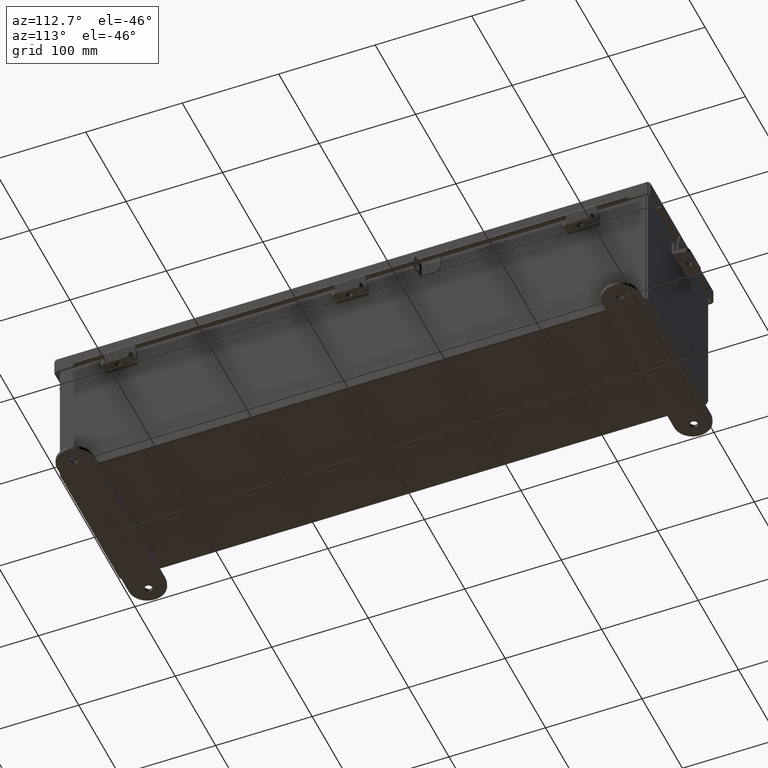
[diagram: clean part render]
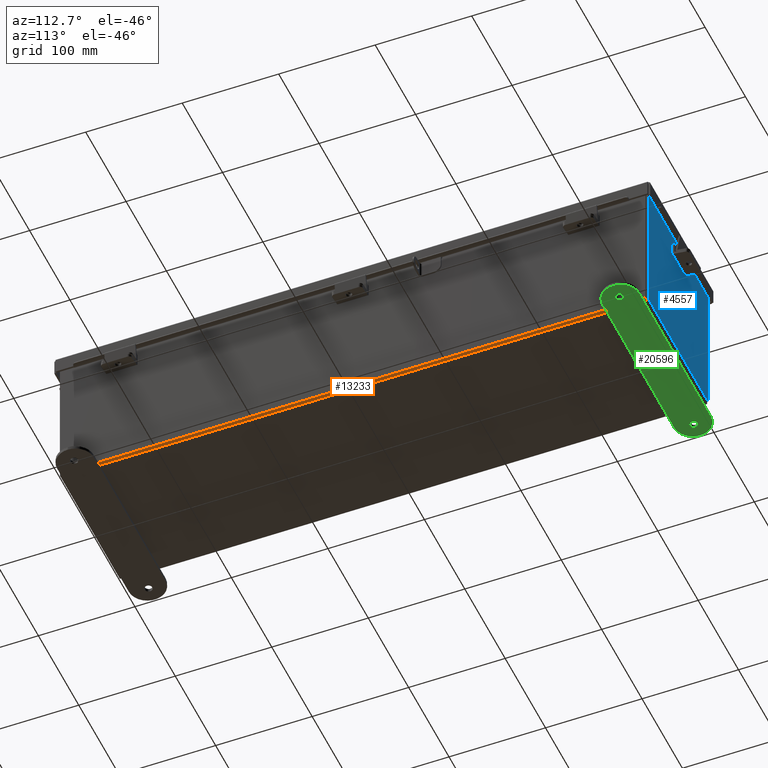
[diagram: same view with three faces highlighted in distinct colors, each labeled with its STEP entity id]
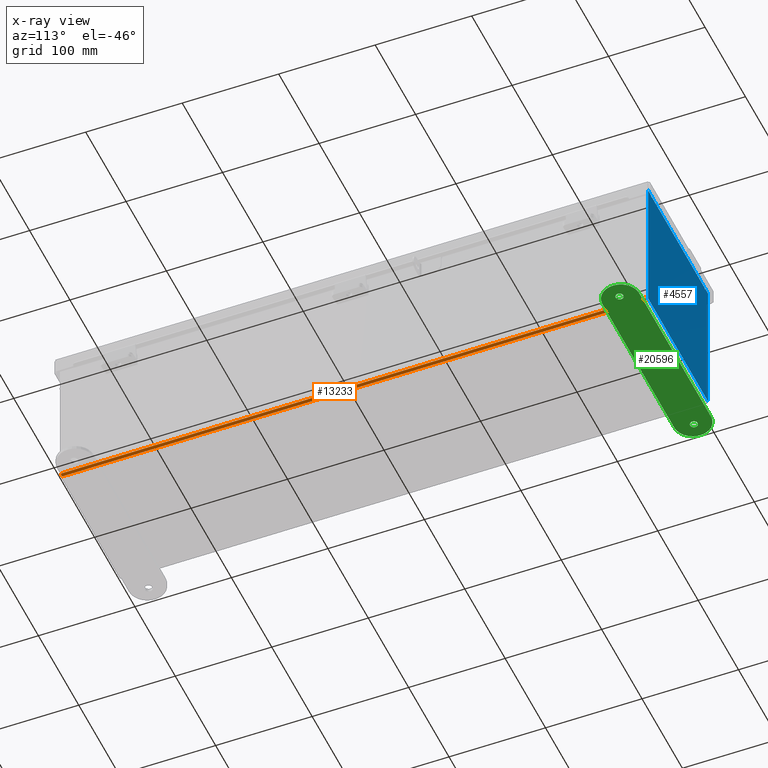
[diagram: x-ray of the same camera — body ghosted, the three highlighted faces saturated]
A machine part, auxiliary view with three faces highlighted in distinct colors.
The next image is the same camera in x-ray (body ghosted, the three faces saturated) — at least one of them is partly hidden behind the body in this view.
Their STEP definitions:

[orange] entity #13233 — the highlighted cylindrical surface (edge-blend (fillet) strip) has radius 2.2276 mm, axis along (0, 1, 0).
#26 = AXIS2_PLACEMENT_3D ( 'NONE', #11849, #1311, #22385 ) ;
#61 = VECTOR ( 'NONE', #8740, 39.37007874015748100 ) ;
#237 = DIRECTION ( 'NONE',  ( -0.0000000000000000000, -1.000000000000000000, -8.208677865577646300E-017 ) ) ;
#1311 = DIRECTION ( 'NONE',  ( 0.0000000000000000000, 1.000000000000000000, 8.208677865577646300E-017 ) ) ;
#2020 = CIRCLE ( 'NONE', #21043, 0.08770000000000009700 ) ;
#2205 = CIRCLE ( 'NONE', #3497, 0.08770000000000009700 ) ;
#2698 = DIRECTION ( 'NONE',  ( -1.583087998225295500E-031, -1.000000000000000000, -4.581600452255731000E-017 ) ) ;
#3497 = AXIS2_PLACEMENT_3D ( 'NONE', #8204, #20507, #9972 ) ;
#4540 = LINE ( 'NONE', #11485, #22159 ) ;
#4918 = VERTEX_POINT ( 'NONE', #10673 ) ;
#4931 = EDGE_CURVE ( 'NONE', #6884, #4918, #2020, .T. ) ;
#5833 = CARTESIAN_POINT ( 'NONE',  ( 2.912299999999999200, 11.92529999999999300, -0.07469999999999842000 ) ) ;
#6425 = EDGE_CURVE ( 'NONE', #18147, #6884, #18747, .T. ) ;
#6469 = FACE_OUTER_BOUND ( 'NONE', #14493, .T. ) ;
#6578 = CARTESIAN_POINT ( 'NONE',  ( 2.912299999999999200, -11.92530000000000000, -0.07470000000000000300 ) ) ;
#6884 = VERTEX_POINT ( 'NONE', #6578 ) ;
#8204 = CARTESIAN_POINT ( 'NONE',  ( 2.912299999999999200, 11.92529999999999300, 0.01300000000000168700 ) ) ;
#8740 = DIRECTION ( 'NONE',  ( -0.0000000000000000000, -1.000000000000000000, -8.208677865577646300E-017 ) ) ;
#9972 = DIRECTION ( 'NONE',  ( 0.0000000000000000000, 0.0000000000000000000, 1.000000000000000000 ) ) ;
#10670 = ORIENTED_EDGE ( 'NONE', *, *, #4931, .F. ) ;
#10673 = CARTESIAN_POINT ( 'NONE',  ( 2.999999999999999600, -11.92530000000000000, 0.01299999999999941700 ) ) ;
#10753 = CARTESIAN_POINT ( 'NONE',  ( 2.912299999999999200, -11.92530000000000000, 0.01299999999999972400 ) ) ;
#11485 = CARTESIAN_POINT ( 'NONE',  ( 2.999999999999999600, -11.92530000000000000, 0.01299999999999984300 ) ) ;
#11849 = CARTESIAN_POINT ( 'NONE',  ( 2.912299999999999200, 11.92529999999999600, 0.01300000000000168700 ) ) ;
#12527 = DIRECTION ( 'NONE',  ( 0.0000000000000000000, 0.0000000000000000000, 1.000000000000000000 ) ) ;
#13068 = ORIENTED_EDGE ( 'NONE', *, *, #16544, .F. ) ;
#13085 = EDGE_CURVE ( 'NONE', #15536, #4918, #4540, .T. ) ;
#13233 = ADVANCED_FACE ( 'NONE', ( #6469 ), #19389, .T. ) ;
#14493 = EDGE_LOOP ( 'NONE', ( #14568, #13068, #19364, #10670 ) ) ;
#14568 = ORIENTED_EDGE ( 'NONE', *, *, #6425, .F. ) ;
#15536 = VERTEX_POINT ( 'NONE', #17345 ) ;
#16544 = EDGE_CURVE ( 'NONE', #15536, #18147, #2205, .T. ) ;
#17345 = CARTESIAN_POINT ( 'NONE',  ( 2.999999999999999600, 11.92529999999999300, 0.01300000000000093600 ) ) ;
#18147 = VERTEX_POINT ( 'NONE', #5833 ) ;
#18747 = LINE ( 'NONE', #19289, #61 ) ;
#19289 = CARTESIAN_POINT ( 'NONE',  ( 2.912299999999999200, 11.92529999999999600, -0.07469999999999842000 ) ) ;
#19364 = ORIENTED_EDGE ( 'NONE', *, *, #13085, .T. ) ;
#19389 = CYLINDRICAL_SURFACE ( 'NONE', #26, 0.08770000000000026400 ) ;
#20507 = DIRECTION ( 'NONE',  ( 0.0000000000000000000, 1.000000000000000000, 8.208677865577646300E-017 ) ) ;
#21043 = AXIS2_PLACEMENT_3D ( 'NONE', #10753, #237, #12527 ) ;
#22159 = VECTOR ( 'NONE', #2698, 39.37007874015748100 ) ;
#22385 = DIRECTION ( 'NONE',  ( 1.000000000000000000, 0.0000000000000000000, -3.455694262224952200E-015 ) ) ;

[blue] entity #4557 — the highlighted planar face has unit normal (0, -1, 0).
#304 = VERTEX_POINT ( 'NONE', #10882 ) ;
#855 = ORIENTED_EDGE ( 'NONE', *, *, #14637, .F. ) ;
#1180 = VECTOR ( 'NONE', #5538, 39.37007874015748100 ) ;
#1189 = LINE ( 'NONE', #18057, #9978 ) ;
#1328 = DIRECTION ( 'NONE',  ( -1.000000000000000000, -0.0000000000000000000, -0.0000000000000000000 ) ) ;
#2074 = EDGE_CURVE ( 'NONE', #8265, #12987, #8125, .T. ) ;
#2245 = VECTOR ( 'NONE', #21552, 39.37007874015748100 ) ;
#2322 = DIRECTION ( 'NONE',  ( 0.0000000000000000000, -1.000000000000000000, 0.0000000000000000000 ) ) ;
#2728 = ORIENTED_EDGE ( 'NONE', *, *, #22401, .F. ) ;
#3152 = EDGE_CURVE ( 'NONE', #4886, #3681, #19918, .T. ) ;
#3340 = ORIENTED_EDGE ( 'NONE', *, *, #8816, .F. ) ;
#3681 = VERTEX_POINT ( 'NONE', #9119 ) ;
#3897 = LINE ( 'NONE', #6212, #22067 ) ;
#3972 = DIRECTION ( 'NONE',  ( -0.0000000000000000000, 1.000000000000000000, -0.0000000000000000000 ) ) ;
#4195 = AXIS2_PLACEMENT_3D ( 'NONE', #5788, #18090, #7559 ) ;
#4367 = LINE ( 'NONE', #16182, #22527 ) ;
#4557 = ADVANCED_FACE ( 'NONE', ( #13876 ), #21611, .F. ) ;
#4886 = VERTEX_POINT ( 'NONE', #21124 ) ;
#5355 = EDGE_CURVE ( 'NONE', #10192, #304, #8080, .T. ) ;
#5443 = VECTOR ( 'NONE', #1328, 39.37007874015748100 ) ;
#5538 = DIRECTION ( 'NONE',  ( -1.085143195099989400E-014, 0.0000000000000000000, -1.000000000000000000 ) ) ;
#5652 = DIRECTION ( 'NONE',  ( 1.000000000000000000, 0.0000000000000000000, 0.0000000000000000000 ) ) ;
#5788 = CARTESIAN_POINT ( 'NONE',  ( -2.600974999999999600, 0.0000000000000000000, 2.874949999999999200 ) ) ;
#5877 = VECTOR ( 'NONE', #16555, 39.37007874015748100 ) ;
#6212 = CARTESIAN_POINT ( 'NONE',  ( -2.582299999999999600, 0.0000000000000000000, 0.0000000000000000000 ) ) ;
#6819 = ORIENTED_EDGE ( 'NONE', *, *, #8947, .T. ) ;
#7222 = DIRECTION ( 'NONE',  ( 0.0000000000000000000, 0.0000000000000000000, 1.000000000000000000 ) ) ;
#7559 = DIRECTION ( 'NONE',  ( 0.0000000000000000000, 0.0000000000000000000, -1.000000000000000000 ) ) ;
#8069 = LINE ( 'NONE', #10688, #21549 ) ;
#8080 = LINE ( 'NONE', #9961, #8617 ) ;
#8125 = CIRCLE ( 'NONE', #4195, 0.01867500000000003900 ) ;
#8265 = VERTEX_POINT ( 'NONE', #17588 ) ;
#8326 = CARTESIAN_POINT ( 'NONE',  ( -2.619649999999999600, 0.0000000000000000000, 2.925299999999999600 ) ) ;
#8617 = VECTOR ( 'NONE', #20498, 39.37007874015748100 ) ;
#8697 = ORIENTED_EDGE ( 'NONE', *, *, #2074, .F. ) ;
#8816 = EDGE_CURVE ( 'NONE', #12302, #15890, #8069, .T. ) ;
#8947 = EDGE_CURVE ( 'NONE', #3681, #17217, #15223, .T. ) ;
#8955 = EDGE_CURVE ( 'NONE', #12987, #17217, #1189, .T. ) ;
#9119 = CARTESIAN_POINT ( 'NONE',  ( -2.925299999999999600, 0.0000000000000000000, 2.925299999999999600 ) ) ;
#9669 = CARTESIAN_POINT ( 'NONE',  ( -2.582299999999999600, 2.185478394931410600E-015, 2.912299999999999200 ) ) ;
#9961 = CARTESIAN_POINT ( 'NONE',  ( 2.925300000000000500, 0.0000000000000000000, 2.925299999999999600 ) ) ;
#9978 = VECTOR ( 'NONE', #19846, 39.37007874015748100 ) ;
#10192 = VERTEX_POINT ( 'NONE', #12848 ) ;
#10537 = ORIENTED_EDGE ( 'NONE', *, *, #5355, .T. ) ;
#10590 = ORIENTED_EDGE ( 'NONE', *, *, #15625, .T. ) ;
#10688 = CARTESIAN_POINT ( 'NONE',  ( 2.582300000000000500, 0.0000000000000000000, 0.0000000000000000000 ) ) ;
#10856 = CARTESIAN_POINT ( 'NONE',  ( 2.619649999999969400, 0.0000000000000000000, -2.841121913410833900E-014 ) ) ;
#10882 = CARTESIAN_POINT ( 'NONE',  ( 2.925300000000000500, 0.0000000000000000000, -2.925300000000000000 ) ) ;
#11011 = ORIENTED_EDGE ( 'NONE', *, *, #16889, .T. ) ;
#11025 = CARTESIAN_POINT ( 'NONE',  ( -2.925299999999999600, 0.0000000000000000000, 2.925299999999999600 ) ) ;
#11172 = CARTESIAN_POINT ( 'NONE',  ( -2.619649999999999600, 0.0000000000000000000, 2.874949999999999200 ) ) ;
#11754 = CARTESIAN_POINT ( 'NONE',  ( 2.619650000000000500, 0.0000000000000000000, 2.925299999999999600 ) ) ;
#11781 = CARTESIAN_POINT ( 'NONE',  ( 2.582300000000000500, 0.0000000000000000000, 2.874949999999999200 ) ) ;
#11904 = VERTEX_POINT ( 'NONE', #13723 ) ;
#12108 = ORIENTED_EDGE ( 'NONE', *, *, #18299, .F. ) ;
#12302 = VERTEX_POINT ( 'NONE', #11781 ) ;
#12848 = CARTESIAN_POINT ( 'NONE',  ( 2.925300000000000500, 0.0000000000000000000, 2.925299999999999600 ) ) ;
#12987 = VERTEX_POINT ( 'NONE', #11172 ) ;
#13139 = ORIENTED_EDGE ( 'NONE', *, *, #3152, .T. ) ;
#13224 = ORIENTED_EDGE ( 'NONE', *, *, #8955, .F. ) ;
#13475 = CARTESIAN_POINT ( 'NONE',  ( 2.582300000000000500, 0.0000000000000000000, 2.912299999999999200 ) ) ;
#13476 = AXIS2_PLACEMENT_3D ( 'NONE', #14517, #3972, #16278 ) ;
#13723 = CARTESIAN_POINT ( 'NONE',  ( 2.619650000000000500, 0.0000000000000000000, 2.874949999999999200 ) ) ;
#13876 = FACE_OUTER_BOUND ( 'NONE', #16418, .T. ) ;
#14042 = ORIENTED_EDGE ( 'NONE', *, *, #21285, .T. ) ;
#14429 = AXIS2_PLACEMENT_3D ( 'NONE', #16224, #2322, #14622 ) ;
#14517 = CARTESIAN_POINT ( 'NONE',  ( 2.600975000000000500, 0.0000000000000000000, 2.874949999999999200 ) ) ;
#14536 = DIRECTION ( 'NONE',  ( 1.000000000000000000, 0.0000000000000000000, 0.0000000000000000000 ) ) ;
#14622 = DIRECTION ( 'NONE',  ( 0.0000000000000000000, -0.0000000000000000000, -1.000000000000000000 ) ) ;
#14637 = EDGE_CURVE ( 'NONE', #15396, #11904, #15218, .T. ) ;
#14803 = CARTESIAN_POINT ( 'NONE',  ( -2.925299999999999600, 0.0000000000000000000, 2.925299999999999600 ) ) ;
#15218 = LINE ( 'NONE', #10856, #1180 ) ;
#15223 = LINE ( 'NONE', #16297, #19332 ) ;
#15396 = VERTEX_POINT ( 'NONE', #11754 ) ;
#15625 = EDGE_CURVE ( 'NONE', #15396, #10192, #19284, .T. ) ;
#15890 = VERTEX_POINT ( 'NONE', #13475 ) ;
#16182 = CARTESIAN_POINT ( 'NONE',  ( -2.582299999999999600, 2.185478394931410600E-015, 2.912299999999999200 ) ) ;
#16224 = CARTESIAN_POINT ( 'NONE',  ( 0.0000000000000000000, 0.0000000000000000000, 0.0000000000000000000 ) ) ;
#16278 = DIRECTION ( 'NONE',  ( 0.0000000000000000000, 0.0000000000000000000, -1.000000000000000000 ) ) ;
#16297 = CARTESIAN_POINT ( 'NONE',  ( -2.925299999999999600, 0.0000000000000000000, 2.925299999999999600 ) ) ;
#16418 = EDGE_LOOP ( 'NONE', ( #13224, #8697, #12108, #11011, #3340, #2728, #855, #10590, #10537, #14042, #13139, #6819 ) ) ;
#16555 = DIRECTION ( 'NONE',  ( -0.0000000000000000000, -0.0000000000000000000, 1.000000000000000000 ) ) ;
#16889 = EDGE_CURVE ( 'NONE', #18288, #15890, #4367, .T. ) ;
#17150 = CARTESIAN_POINT ( 'NONE',  ( -2.925299999999999600, 0.0000000000000000000, -2.925300000000000000 ) ) ;
#17217 = VERTEX_POINT ( 'NONE', #8326 ) ;
#17588 = CARTESIAN_POINT ( 'NONE',  ( -2.582299999999999600, 0.0000000000000000000, 2.874949999999999200 ) ) ;
#18057 = CARTESIAN_POINT ( 'NONE',  ( -2.619649999999999600, 0.0000000000000000000, 0.0000000000000000000 ) ) ;
#18090 = DIRECTION ( 'NONE',  ( -0.0000000000000000000, 1.000000000000000000, -0.0000000000000000000 ) ) ;
#18288 = VERTEX_POINT ( 'NONE', #9669 ) ;
#18299 = EDGE_CURVE ( 'NONE', #18288, #8265, #3897, .T. ) ;
#18510 = DIRECTION ( 'NONE',  ( 0.0000000000000000000, 0.0000000000000000000, -1.000000000000000000 ) ) ;
#19284 = LINE ( 'NONE', #11025, #2245 ) ;
#19332 = VECTOR ( 'NONE', #14536, 39.37007874015748100 ) ;
#19473 = LINE ( 'NONE', #17150, #5443 ) ;
#19846 = DIRECTION ( 'NONE',  ( 0.0000000000000000000, 0.0000000000000000000, 1.000000000000000000 ) ) ;
#19918 = LINE ( 'NONE', #14803, #5877 ) ;
#20498 = DIRECTION ( 'NONE',  ( 0.0000000000000000000, 0.0000000000000000000, -1.000000000000000000 ) ) ;
#21124 = CARTESIAN_POINT ( 'NONE',  ( -2.925299999999999600, 0.0000000000000000000, -2.925300000000000000 ) ) ;
#21285 = EDGE_CURVE ( 'NONE', #304, #4886, #19473, .T. ) ;
#21355 = CIRCLE ( 'NONE', #13476, 0.01867500000000003900 ) ;
#21549 = VECTOR ( 'NONE', #7222, 39.37007874015748100 ) ;
#21552 = DIRECTION ( 'NONE',  ( 1.000000000000000000, 0.0000000000000000000, 0.0000000000000000000 ) ) ;
#21611 = PLANE ( 'NONE',  #14429 ) ;
#22067 = VECTOR ( 'NONE', #18510, 39.37007874015748100 ) ;
#22401 = EDGE_CURVE ( 'NONE', #11904, #12302, #21355, .T. ) ;
#22527 = VECTOR ( 'NONE', #5652, 39.37007874015748100 ) ;

[green] entity #20596 — the highlighted planar face has unit normal (0, -0, 1).
#226 = ORIENTED_EDGE ( 'NONE', *, *, #7783, .T. ) ;
#270 = EDGE_CURVE ( 'NONE', #9312, #2326, #17262, .T. ) ;
#355 = CARTESIAN_POINT ( 'NONE',  ( -3.499999999999998700, 0.4120940649496127000, 0.0000000000000000000 ) ) ;
#432 = CIRCLE ( 'NONE', #13144, 0.7499999999999998900 ) ;
#547 = FACE_OUTER_BOUND ( 'NONE', #19818, .T. ) ;
#611 = DIRECTION ( 'NONE',  ( -0.0000000000000000000, -0.0000000000000000000, -1.000000000000000000 ) ) ;
#1025 = AXIS2_PLACEMENT_3D ( 'NONE', #2055, #14352, #3808 ) ;
#1209 = DIRECTION ( 'NONE',  ( -0.0000000000000000000, 0.0000000000000000000, -1.000000000000000000 ) ) ;
#1239 = LINE ( 'NONE', #20684, #5908 ) ;
#1673 = VERTEX_POINT ( 'NONE', #20195 ) ;
#1962 = AXIS2_PLACEMENT_3D ( 'NONE', #4725, #1209, #18806 ) ;
#2055 = CARTESIAN_POINT ( 'NONE',  ( 3.625000000000000400, 0.4120940649496087600, 0.0000000000000000000 ) ) ;
#2108 = DIRECTION ( 'NONE',  ( 1.000000000000000000, 0.0000000000000000000, 0.0000000000000000000 ) ) ;
#2326 = VERTEX_POINT ( 'NONE', #3338 ) ;
#2714 = EDGE_CURVE ( 'NONE', #3124, #1673, #19374, .T. ) ;
#2800 = AXIS2_PLACEMENT_3D ( 'NONE', #5542, #17844, #7319 ) ;
#3124 = VERTEX_POINT ( 'NONE', #4181 ) ;
#3216 = VECTOR ( 'NONE', #16632, 39.37007874015748100 ) ;
#3338 = CARTESIAN_POINT ( 'NONE',  ( 3.781499999999999400, 0.4120940649496087600, 0.0000000000000000000 ) ) ;
#3748 = EDGE_CURVE ( 'NONE', #2326, #9312, #15271, .T. ) ;
#3808 = DIRECTION ( 'NONE',  ( -1.000000000000000000, 0.0000000000000000000, 0.0000000000000000000 ) ) ;
#4181 = CARTESIAN_POINT ( 'NONE',  ( -3.781499999999999400, 0.4120940649496087600, 0.0000000000000000000 ) ) ;
#4376 = CARTESIAN_POINT ( 'NONE',  ( -3.625000000000000400, 0.4120940649496087600, 0.0000000000000000000 ) ) ;
#4725 = CARTESIAN_POINT ( 'NONE',  ( 3.500000000000000000, 0.4120940649496125900, 0.0000000000000000000 ) ) ;
#4759 = CARTESIAN_POINT ( 'NONE',  ( 4.250000000000000900, 0.4120940649496125900, 0.0000000000000000000 ) ) ;
#5193 = FACE_BOUND ( 'NONE', #16959, .T. ) ;
#5518 = EDGE_CURVE ( 'NONE', #8095, #15346, #9447, .T. ) ;
#5542 = CARTESIAN_POINT ( 'NONE',  ( -3.625000000000000400, 0.4120940649496087600, 0.0000000000000000000 ) ) ;
#5908 = VECTOR ( 'NONE', #22454, 39.37007874015748100 ) ;
#5967 = EDGE_CURVE ( 'NONE', #1673, #3124, #9966, .T. ) ;
#6091 = CARTESIAN_POINT ( 'NONE',  ( -3.499999999999998700, -0.3379059350503874600, 0.0000000000000000000 ) ) ;
#6124 = EDGE_CURVE ( 'NONE', #15685, #8095, #11354, .T. ) ;
#6142 = DIRECTION ( 'NONE',  ( 1.000000000000000000, 0.0000000000000000000, 0.0000000000000000000 ) ) ;
#6503 = ORIENTED_EDGE ( 'NONE', *, *, #13247, .T. ) ;
#6504 = PLANE ( 'NONE',  #1962 ) ;
#6675 = ORIENTED_EDGE ( 'NONE', *, *, #11717, .T. ) ;
#7319 = DIRECTION ( 'NONE',  ( 1.000000000000000000, 0.0000000000000000000, 0.0000000000000000000 ) ) ;
#7471 = AXIS2_PLACEMENT_3D ( 'NONE', #11133, #611, #12898 ) ;
#7695 = DIRECTION ( 'NONE',  ( 0.0000000000000000000, 0.0000000000000000000, 1.000000000000000000 ) ) ;
#7783 = EDGE_CURVE ( 'NONE', #14078, #17861, #432, .T. ) ;
#8047 = AXIS2_PLACEMENT_3D ( 'NONE', #4376, #16676, #6142 ) ;
#8095 = VERTEX_POINT ( 'NONE', #4759 ) ;
#8585 = ORIENTED_EDGE ( 'NONE', *, *, #6124, .T. ) ;
#9312 = VERTEX_POINT ( 'NONE', #19049 ) ;
#9447 = CIRCLE ( 'NONE', #17800, 0.7500000000000010000 ) ;
#9966 = CIRCLE ( 'NONE', #2800, 0.1564999999999992800 ) ;
#10424 = ORIENTED_EDGE ( 'NONE', *, *, #270, .T. ) ;
#10499 = DIRECTION ( 'NONE',  ( 0.0000000000000000000, 0.0000000000000000000, 1.000000000000000000 ) ) ;
#11133 = CARTESIAN_POINT ( 'NONE',  ( 3.625000000000000400, 0.4120940649496087600, 0.0000000000000000000 ) ) ;
#11354 = CIRCLE ( 'NONE', #15756, 0.7500000000000010000 ) ;
#11717 = EDGE_CURVE ( 'NONE', #17861, #15685, #17771, .T. ) ;
#12082 = ORIENTED_EDGE ( 'NONE', *, *, #3748, .T. ) ;
#12632 = DIRECTION ( 'NONE',  ( 0.0000000000000000000, 0.0000000000000000000, 1.000000000000000000 ) ) ;
#12898 = DIRECTION ( 'NONE',  ( -1.000000000000000000, 0.0000000000000000000, 0.0000000000000000000 ) ) ;
#13144 = AXIS2_PLACEMENT_3D ( 'NONE', #355, #12632, #2108 ) ;
#13247 = EDGE_CURVE ( 'NONE', #15346, #14078, #1239, .T. ) ;
#13376 = CARTESIAN_POINT ( 'NONE',  ( 3.499999999999998700, 1.162094064949613600, 0.0000000000000000000 ) ) ;
#14023 = FACE_BOUND ( 'NONE', #18263, .T. ) ;
#14078 = VERTEX_POINT ( 'NONE', #17865 ) ;
#14352 = DIRECTION ( 'NONE',  ( -0.0000000000000000000, -0.0000000000000000000, -1.000000000000000000 ) ) ;
#15240 = CARTESIAN_POINT ( 'NONE',  ( -3.499999999999998700, -0.3379059350503874600, 0.0000000000000000000 ) ) ;
#15271 = CIRCLE ( 'NONE', #7471, 0.1564999999999992800 ) ;
#15346 = VERTEX_POINT ( 'NONE', #13376 ) ;
#15685 = VERTEX_POINT ( 'NONE', #19939 ) ;
#15756 = AXIS2_PLACEMENT_3D ( 'NONE', #18226, #7695, #20005 ) ;
#16632 = DIRECTION ( 'NONE',  ( 1.000000000000000000, -1.170791997284684700E-016, 0.0000000000000000000 ) ) ;
#16676 = DIRECTION ( 'NONE',  ( 0.0000000000000000000, 0.0000000000000000000, 1.000000000000000000 ) ) ;
#16750 = ORIENTED_EDGE ( 'NONE', *, *, #5518, .T. ) ;
#16959 = EDGE_LOOP ( 'NONE', ( #21998, #21618 ) ) ;
#17262 = CIRCLE ( 'NONE', #1025, 0.1564999999999992800 ) ;
#17771 = LINE ( 'NONE', #6091, #3216 ) ;
#17800 = AXIS2_PLACEMENT_3D ( 'NONE', #21032, #10499, #22789 ) ;
#17844 = DIRECTION ( 'NONE',  ( 0.0000000000000000000, 0.0000000000000000000, 1.000000000000000000 ) ) ;
#17861 = VERTEX_POINT ( 'NONE', #15240 ) ;
#17865 = CARTESIAN_POINT ( 'NONE',  ( -3.499999999999998700, 1.162094064949613000, 0.0000000000000000000 ) ) ;
#18226 = CARTESIAN_POINT ( 'NONE',  ( 3.500000000000000000, 0.4120940649496125900, 0.0000000000000000000 ) ) ;
#18263 = EDGE_LOOP ( 'NONE', ( #12082, #10424 ) ) ;
#18806 = DIRECTION ( 'NONE',  ( -1.000000000000000000, 0.0000000000000000000, 0.0000000000000000000 ) ) ;
#19049 = CARTESIAN_POINT ( 'NONE',  ( 3.468500000000001000, 0.4120940649496087600, 0.0000000000000000000 ) ) ;
#19374 = CIRCLE ( 'NONE', #8047, 0.1564999999999992800 ) ;
#19818 = EDGE_LOOP ( 'NONE', ( #8585, #16750, #6503, #226, #6675 ) ) ;
#19939 = CARTESIAN_POINT ( 'NONE',  ( 3.499999999999998700, -0.3379059350503883000, 0.0000000000000000000 ) ) ;
#20005 = DIRECTION ( 'NONE',  ( -1.000000000000000000, 0.0000000000000000000, 0.0000000000000000000 ) ) ;
#20195 = CARTESIAN_POINT ( 'NONE',  ( -3.468500000000001000, 0.4120940649496087600, 0.0000000000000000000 ) ) ;
#20596 = ADVANCED_FACE ( 'NONE', ( #547, #5193, #14023 ), #6504, .F. ) ;
#20684 = CARTESIAN_POINT ( 'NONE',  ( -3.499999999999998700, 1.162094064949613000, 0.0000000000000000000 ) ) ;
#21032 = CARTESIAN_POINT ( 'NONE',  ( 3.500000000000000000, 0.4120940649496125900, 0.0000000000000000000 ) ) ;
#21618 = ORIENTED_EDGE ( 'NONE', *, *, #2714, .F. ) ;
#21998 = ORIENTED_EDGE ( 'NONE', *, *, #5967, .F. ) ;
#22454 = DIRECTION ( 'NONE',  ( -1.000000000000000000, -1.170791997284684700E-016, -0.0000000000000000000 ) ) ;
#22789 = DIRECTION ( 'NONE',  ( -1.000000000000000000, 0.0000000000000000000, 0.0000000000000000000 ) ) ;